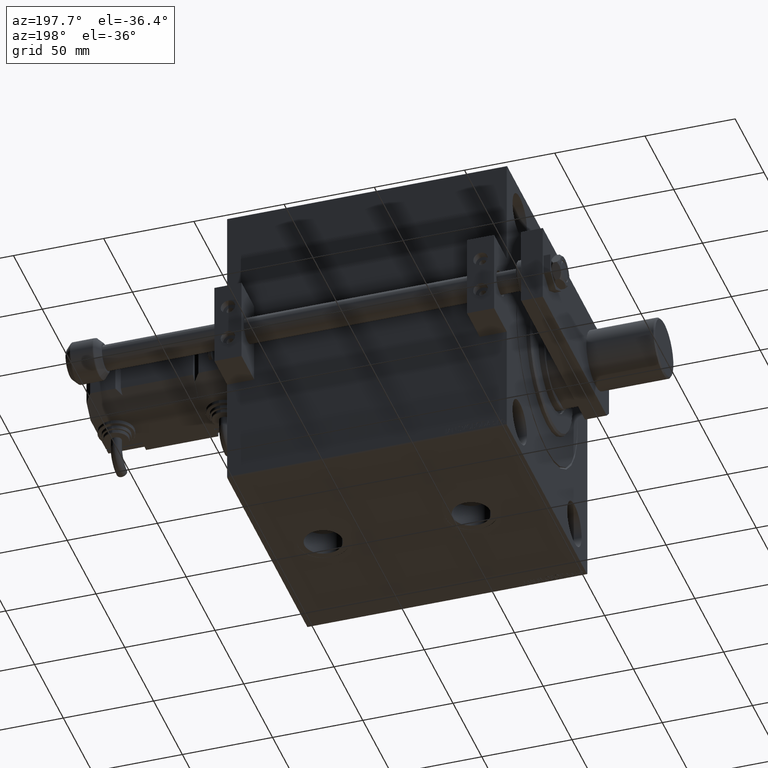
[diagram: clean part render]
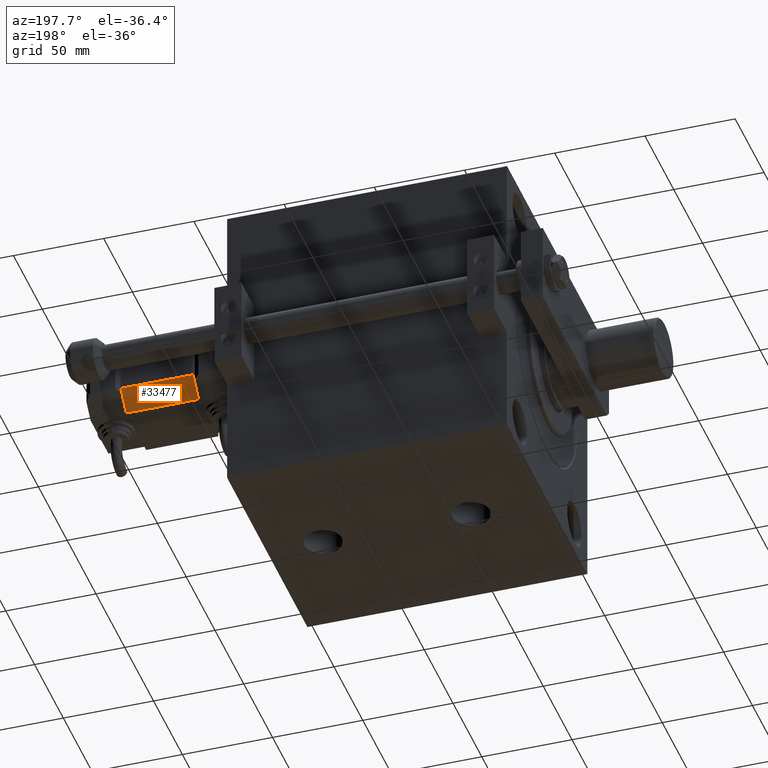
[diagram: same view with one face highlighted and labeled with its STEP entity id]
A machine part, auxiliary view. The second image highlights one B-rep face of the part: STEP entity #33477.
In plain terms, the highlighted planar face has unit normal (-0, -0.7071, 0.7071).
Its self-contained STEP definition (entity closure, byte-faithful):
#48 = PLANE ( 'NONE',  #2451 ) ;
#2243 = LINE ( 'NONE', #21269, #16171 ) ;
#2451 = AXIS2_PLACEMENT_3D ( 'NONE', #15935, #27363, #31809 ) ;
#2514 = DIRECTION ( 'NONE',  ( 0.7071067811865465735, -0.7071067811865485719, -0.000000000000000000 ) ) ;
#6324 = CARTESIAN_POINT ( 'NONE',  ( 20.00000000000000000, 12.49999999999994671, 40.00000000000000000 ) ) ;
#6514 = VERTEX_POINT ( 'NONE', #35664 ) ;
#8725 = DIRECTION ( 'NONE',  ( 0.000000000000000000, 0.000000000000000000, 1.000000000000000000 ) ) ;
#10223 = VERTEX_POINT ( 'NONE', #6324 ) ;
#12563 = ORIENTED_EDGE ( 'NONE', *, *, #47240, .F. ) ;
#14279 = ORIENTED_EDGE ( 'NONE', *, *, #17938, .F. ) ;
#15836 = ORIENTED_EDGE ( 'NONE', *, *, #22107, .F. ) ;
#15935 = CARTESIAN_POINT ( 'NONE',  ( 10.49999999999997868, 21.99999999999999645, 40.00000000000000000 ) ) ;
#16171 = VECTOR ( 'NONE', #49904, 1000.000000000000000 ) ;
#17131 = LINE ( 'NONE', #33763, #49186 ) ;
#17938 = EDGE_CURVE ( 'NONE', #6514, #22900, #42094, .T. ) ;
#18135 = CARTESIAN_POINT ( 'NONE',  ( 10.49999999999997868, 21.99999999999999645, 0.000000000000000000 ) ) ;
#20185 = EDGE_LOOP ( 'NONE', ( #21288, #15836, #14279, #12563 ) ) ;
#21021 = DIRECTION ( 'NONE',  ( -0.7071067811865465735, 0.7071067811865485719, -0.000000000000000000 ) ) ;
#21269 = CARTESIAN_POINT ( 'NONE',  ( 10.49999999999997868, 21.99999999999999645, 40.00000000000000000 ) ) ;
#21288 = ORIENTED_EDGE ( 'NONE', *, *, #38258, .F. ) ;
#22107 = EDGE_CURVE ( 'NONE', #22900, #10223, #44401, .T. ) ;
#22900 = VERTEX_POINT ( 'NONE', #29420 ) ;
#26782 = CARTESIAN_POINT ( 'NONE',  ( 10.49999999999997868, 21.99999999999999645, 40.00000000000000000 ) ) ;
#27363 = DIRECTION ( 'NONE',  ( -0.7071067811865485719, -0.7071067811865464625, -0.000000000000000000 ) ) ;
#28737 = CARTESIAN_POINT ( 'NONE',  ( 20.00000000000000000, 12.49999999999994671, 40.00000000000000000 ) ) ;
#29420 = CARTESIAN_POINT ( 'NONE',  ( 20.00000000000000000, 12.49999999999994671, 0.000000000000000000 ) ) ;
#31809 = DIRECTION ( 'NONE',  ( 0.000000000000000000, 0.000000000000000000, -1.000000000000000000 ) ) ;
#32812 = VERTEX_POINT ( 'NONE', #26782 ) ;
#33477 = ADVANCED_FACE ( 'NONE', ( #43282 ), #48, .F. ) ;
#33763 = CARTESIAN_POINT ( 'NONE',  ( 16.25000000000000355, 16.24999999999995737, 40.00000000000000000 ) ) ;
#35664 = CARTESIAN_POINT ( 'NONE',  ( 10.49999999999997868, 21.99999999999999645, 0.000000000000000000 ) ) ;
#37759 = VECTOR ( 'NONE', #2514, 1000.000000000000000 ) ;
#38258 = EDGE_CURVE ( 'NONE', #10223, #32812, #17131, .T. ) ;
#38621 = VECTOR ( 'NONE', #8725, 1000.000000000000000 ) ;
#42094 = LINE ( 'NONE', #18135, #37759 ) ;
#43282 = FACE_OUTER_BOUND ( 'NONE', #20185, .T. ) ;
#44401 = LINE ( 'NONE', #28737, #38621 ) ;
#47240 = EDGE_CURVE ( 'NONE', #32812, #6514, #2243, .T. ) ;
#49186 = VECTOR ( 'NONE', #21021, 1000.000000000000000 ) ;
#49904 = DIRECTION ( 'NONE',  ( 0.000000000000000000, 0.000000000000000000, -1.000000000000000000 ) ) ;